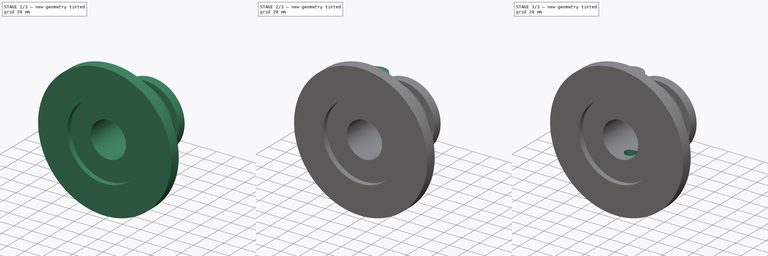
[diagram: build sequence overview — one tinted view per stage of 3, left to right]
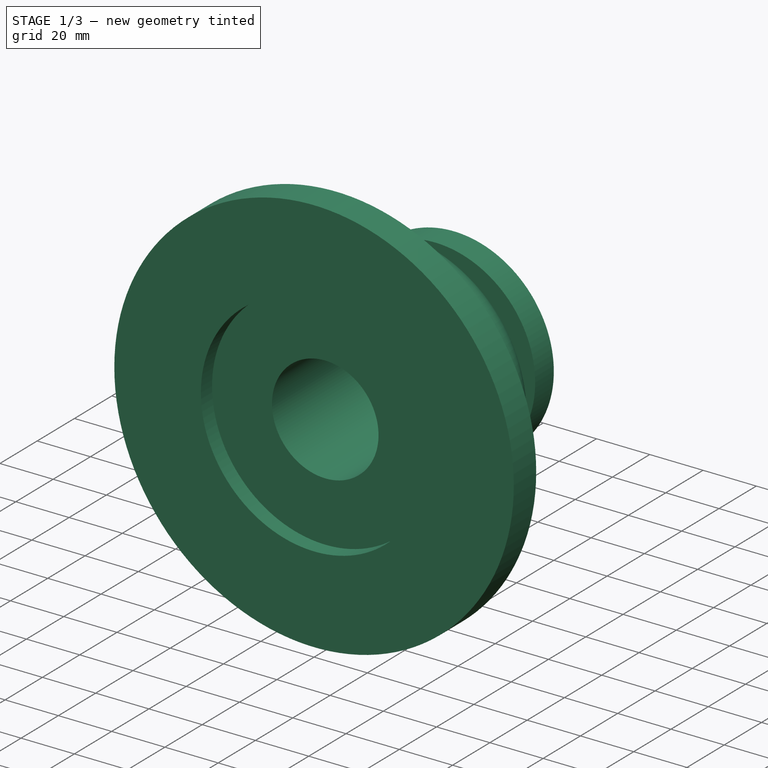
[diagram: stage 1 of 3 — iso view after this stage's code; geometry added in this stage tinted green]
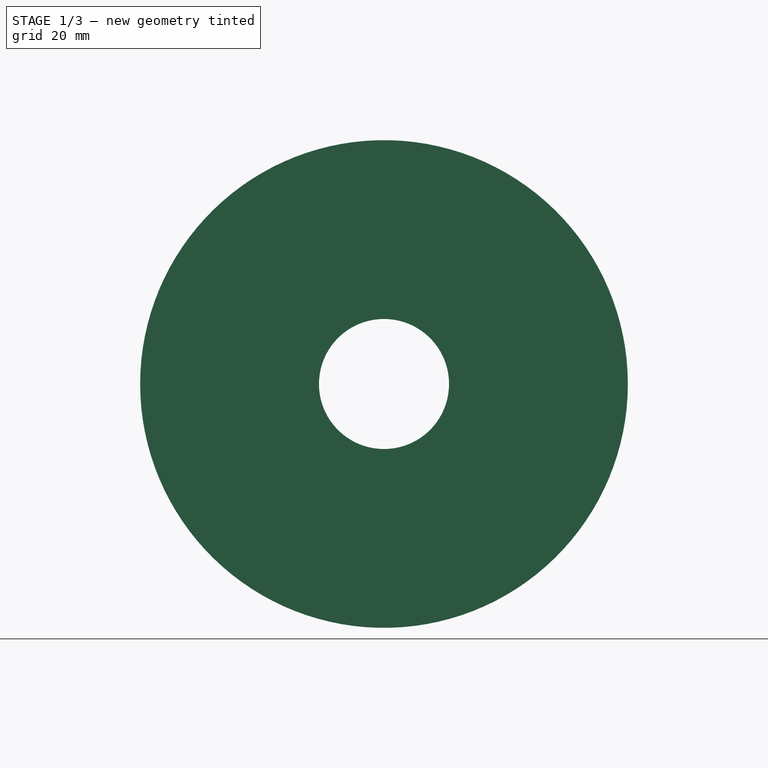
[diagram: stage 1 of 3 — front view after this stage's code; geometry added in this stage tinted green]
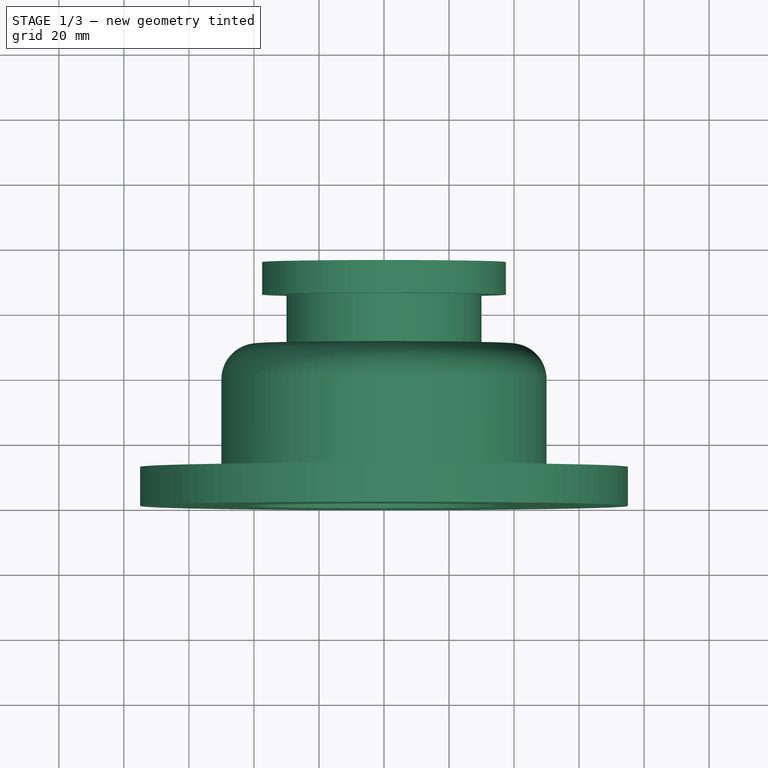
[diagram: stage 1 of 3 — top view after this stage's code; geometry added in this stage tinted green]
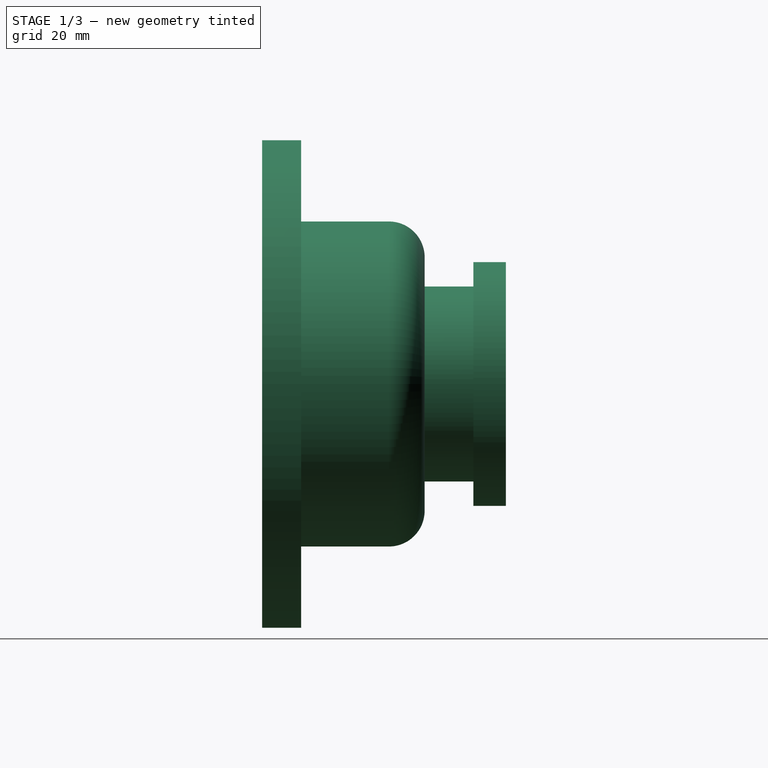
[diagram: stage 1 of 3 — right view after this stage's code; geometry added in this stage tinted green]
FCSTD DOCUMENT  (FreeCAD 1.1R41905 (Git))
Label: 23-T-17-Port
License: Creative Commons Attribution-NonCommercial-ShareAlike 4.0
LicenseURL: https://creativecommons.org/licenses/by-nc-sa/4.0/
objects: Sketcher::SketchObject×2, PartDesign::Hole×2, App::Point×1, PartDesign::Revolution×1, PartDesign::Pad×1, PartDesign::Mirrored×1, PartDesign::Body×1
note: 19 computed .brp shape members not serialized (recipe doc carries the construction recipe); baked Part::Feature solids carry a one-line shape summary decoded from their .brp

FEATURE [App::Point] Origin001  label="Origine"
  Role = Origin
FEATURE [Sketcher::SketchObject] Sketch
  ArcFitTolerance = 1e-06
  AttachmentSupport = -> [Origin]
  ExternalTypes = [0]
  FullyConstrained = true
  MakeInternals = false
  MapMode = 5
  expr: Constraints[24] = 150 / 2
  expr: Constraints[27] = 60 / 2
  expr: Constraints[30] = 75 / 2
  sketch-geometry (11):
    g0: LineSegment StartX=0 StartY=0 StartZ=0 EndX=-75 EndY=0 EndZ=0
    g1: LineSegment StartX=-75 StartY=0 StartZ=0 EndX=-75 EndY=12 EndZ=0
    g2: LineSegment StartX=-75 StartY=12 StartZ=0 EndX=-50 EndY=12 EndZ=0
    g3: LineSegment StartX=-50 StartY=12 StartZ=0 EndX=-50 EndY=39 EndZ=0
    g4: ArcOfCircle CenterX=-39 CenterY=39 CenterZ=0 NormalX=0 NormalY=0 NormalZ=1 AngleXU=0 Radius=11 StartAngle=1.5708 EndAngle=3.14159
    g5: LineSegment StartX=-39 StartY=50 StartZ=0 EndX=-30 EndY=50 EndZ=0
    g6: LineSegment StartX=-30 StartY=50 StartZ=0 EndX=-30 EndY=65 EndZ=0
    g7: LineSegment StartX=-30 StartY=65 StartZ=0 EndX=-37.5 EndY=65 EndZ=0
    g8: LineSegment StartX=-37.5 StartY=65 StartZ=0 EndX=-37.5 EndY=75 EndZ=0
    g9: LineSegment StartX=-37.5 StartY=75 StartZ=0 EndX=0 EndY=75 EndZ=0
    g10: LineSegment StartX=0 StartY=75 StartZ=0 EndX=0 EndY=0 EndZ=0
  constraints (31):
    c: Coincident(g-1,g0)
    c: PointOnObject(g0,g-1)
    c: Coincident(g0,g1)
    c: Coincident(g1,g2)
    c: Horizontal(g2)
    c: Coincident(g2,g3)
    c: Vertical(g3)
    c: Tangent(g3,g4) = 1.5708
    c: Horizontal(g5)
    c: Coincident(g5,g6)
    c: Vertical(g6)
    c: Coincident(g6,g7)
    c: Horizontal(g7)
    c: Coincident(g7,g8)
    c: Coincident(g8,g9)
    c: PointOnObject(g9,g-2)
    c: Horizontal(g9)
    c: Coincident(g9,g10)
    c: Coincident(g10,g0)
    c: Vertical(g8)
    c: Vertical(g1)
    c: Tangent(g4,g5) = 1.5708
    c: DistanceY(g8,g8) = 10
    c: Distance(g4,g0) = 50
    c: DistanceX(g0,g0) = 75
    c: Distance(g1,g1) = 12
    c: Radius(g4) = 11
    c: Distance(g6,g10) = 30
    c: DistanceY(g-1,g9) = 75
    c: Distance(g2,g10) = 50
    c: DistanceX(g9,g9) = 37.5
FEATURE [PartDesign::Revolution] Revolution
  Angle = 360
  Angle2 = 60
  Axis = (1e-16,1,-1e-16)
  Base = (0,0,0)
  Profile = -> Sketch
  ReferenceAxis = -> Y_Axis
  Refine = true
  Suppressed = false
  Type = 0
FEATURE [PartDesign::Hole] Hole
  BaseFeature = -> Revolution
  BaseProfileType = 7
  CustomThreadClearance = 0
  Depth = 454.441
  DepthType = 1
  Diameter = 40
  DrillForDepth = false
  DrillPoint = 1
  DrillPointAngle = 118
  HoleCutCountersinkAngle = 90
  HoleCutCustomValues = false
  HoleCutDepth = 6
  HoleCutDiameter = 85
  HoleCutType = 1
  ModelThread = false
  Profile = -> Revolution [Face1]
  Refine = true
  Suppressed = false
  Tapered = false
  TaperedAngle = 90
  ThreadClass = 0
  ThreadDepth = 454.441
  ThreadDepthType = 0
  ThreadDiameter = 40
  ThreadDirection = 0
  ThreadFit = 0
  ThreadSize = 0
  ThreadType = 0
  Threaded = false
  UseCustomThreadClearance = false
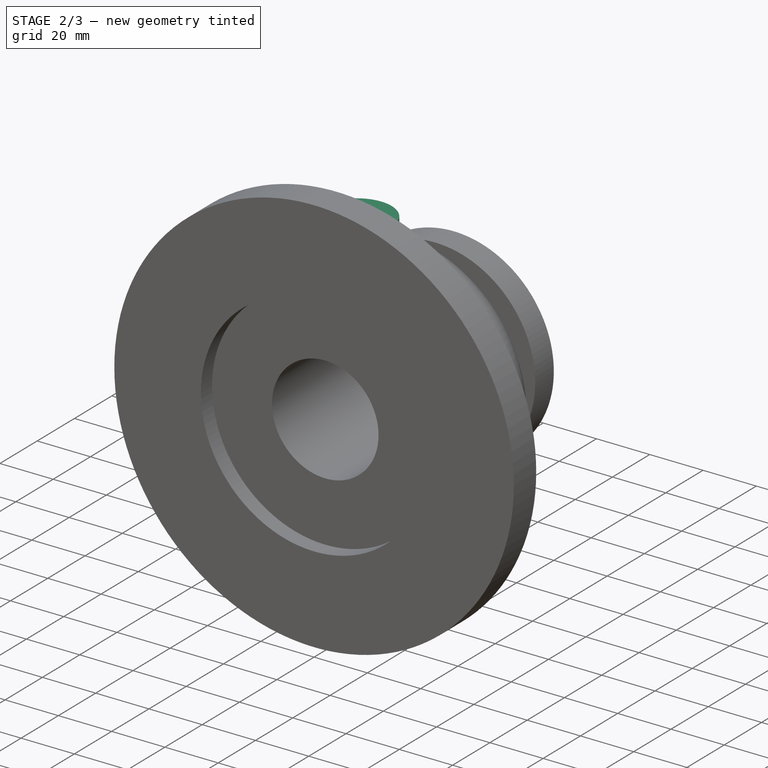
[diagram: stage 2 of 3 — iso view after this stage's code; geometry added in this stage tinted green]
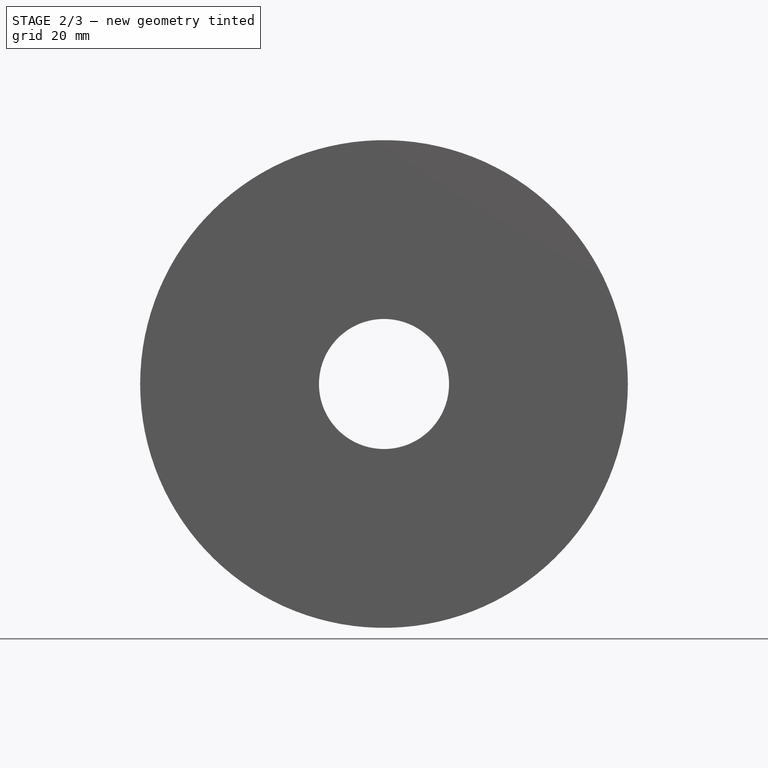
[diagram: stage 2 of 3 — front view after this stage's code; geometry added in this stage tinted green]
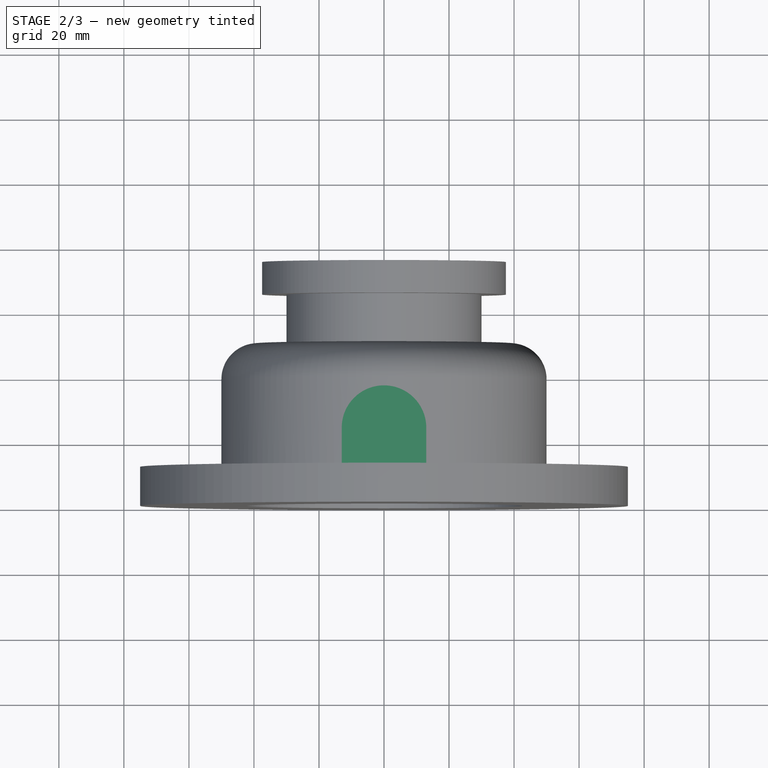
[diagram: stage 2 of 3 — top view after this stage's code; geometry added in this stage tinted green]
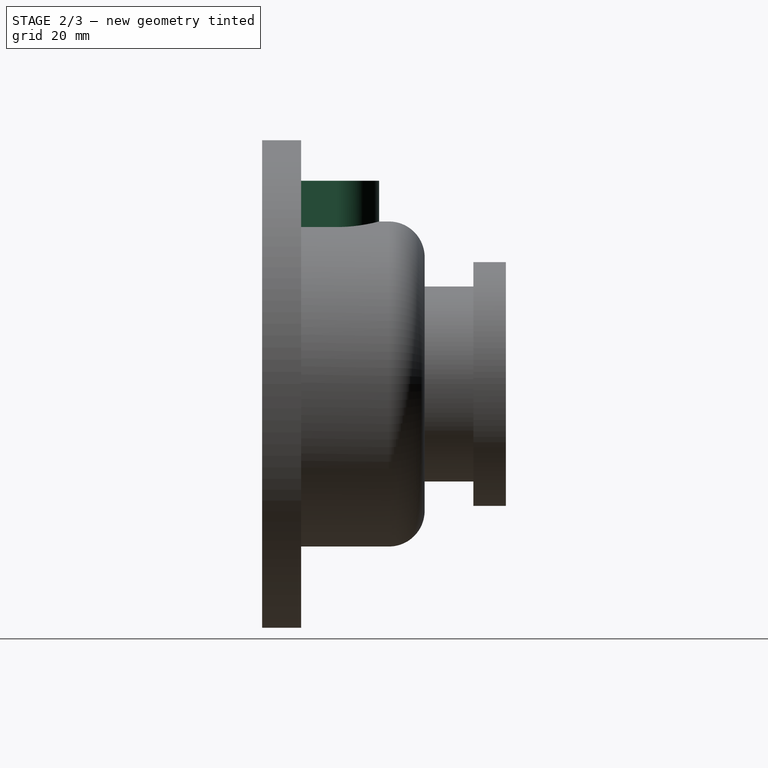
[diagram: stage 2 of 3 — right view after this stage's code; geometry added in this stage tinted green]
FEATURE [Sketcher::SketchObject] Sketch001
  ArcFitTolerance = 1e-06
  AttachmentOffset = pos=(0,0,62.5) rot=(0,0,1;0rad)
  AttachmentSupport = -> [Origin]
  ExternalGeometry = -> [Hole]
  ExternalTypes = [0]
  FullyConstrained = true
  MakeInternals = false
  MapMode = 5
  Placement = pos=(0,0,62.5) rot=(0,0,1;0rad)
  expr: .AttachmentOffset.Base.z = 125 / 2
  sketch-geometry (4):
    g0: LineSegment StartX=-13 StartY=12 StartZ=0 EndX=-13 EndY=23 EndZ=0
    g1: ArcOfCircle CenterX=0 CenterY=23 CenterZ=0 NormalX=0 NormalY=0 NormalZ=1 AngleXU=0 Radius=13 StartAngle=1e-16 EndAngle=3.14159
    g2: LineSegment StartX=13 StartY=23 StartZ=0 EndX=13 EndY=12 EndZ=0
    g3: LineSegment StartX=13 StartY=12 StartZ=0 EndX=-13 EndY=12 EndZ=0
  constraints (11):
    c: PointOnObject(g0,g-3)
    c: Tangent(g0,g1) = 1.5708
    c: Tangent(g1,g2) = 1.5708
    c: Coincident(g2,g3)
    c: Coincident(g3,g0)
    c: Horizontal(g3)
    c: Vertical(g2)
    c: Vertical(g0)
    c: Radius(g1) = 13
    c: PointOnObject(g1,g-2)
    c: Distance(g1,g-1) = 23
FEATURE [PartDesign::Pad] Pad
  BaseFeature = -> Hole
  Direction = (0,0,1)
  Length = 62.5
  Length2 = 10
  Profile = -> Sketch001
  ReferenceAxis = -> Sketch001 [N_Axis]
  Refine = true
  Reversed = true
  Suppressed = false
  Type = 2
  expr: Length = 125 / 2
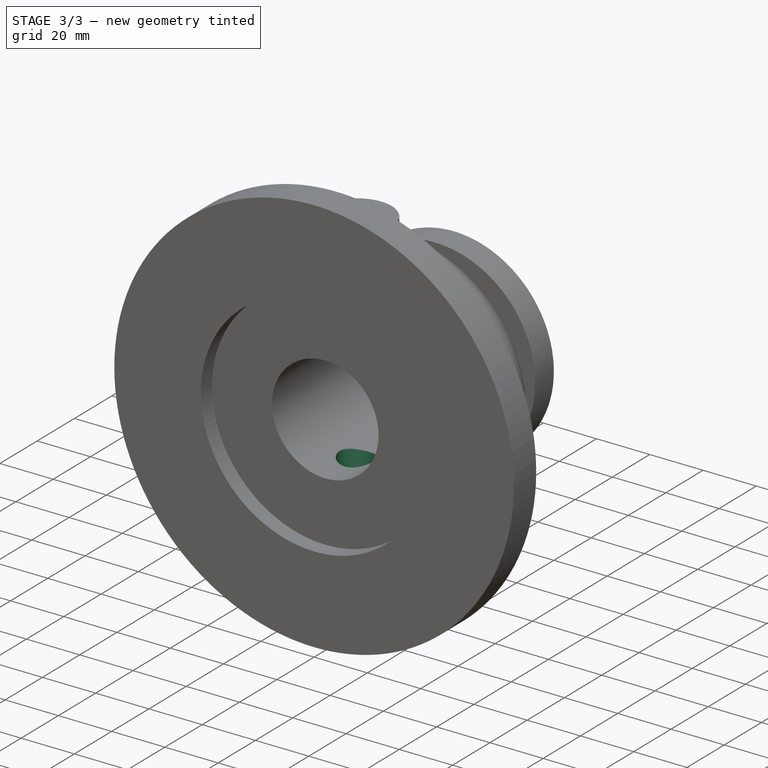
[diagram: stage 3 of 3 — iso view after this stage's code; geometry added in this stage tinted green]
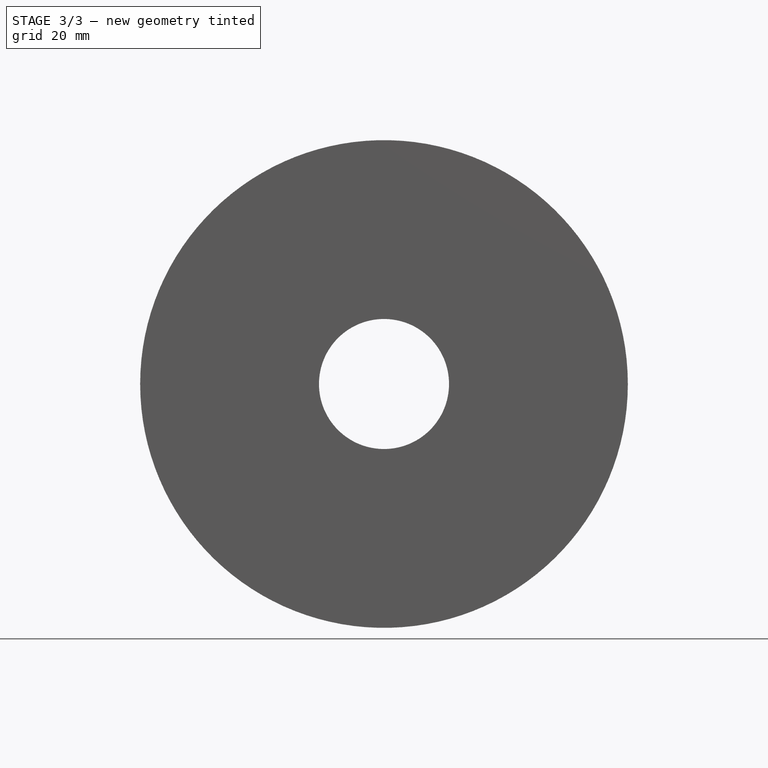
[diagram: stage 3 of 3 — front view after this stage's code; geometry added in this stage tinted green]
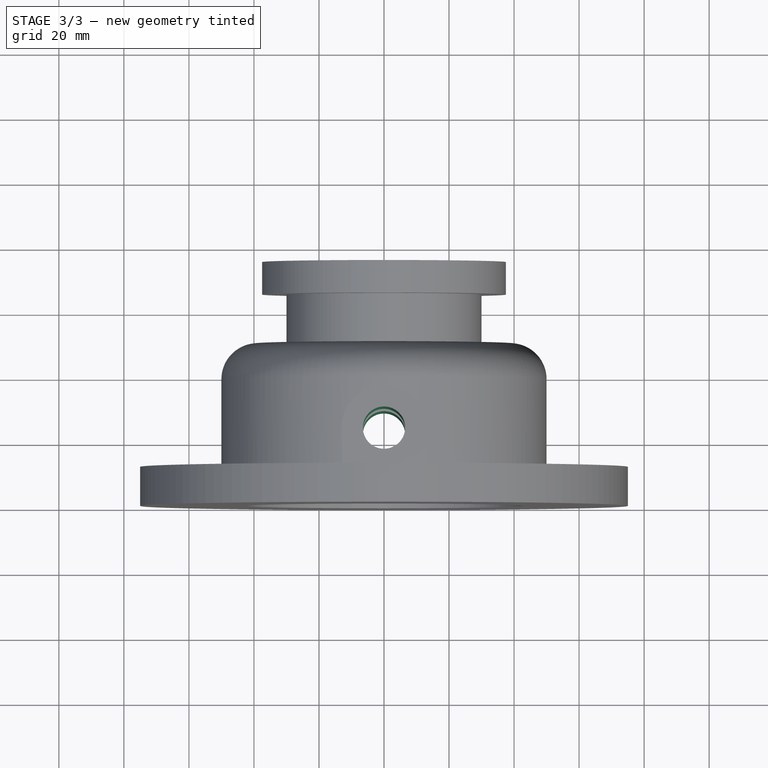
[diagram: stage 3 of 3 — top view after this stage's code; geometry added in this stage tinted green]
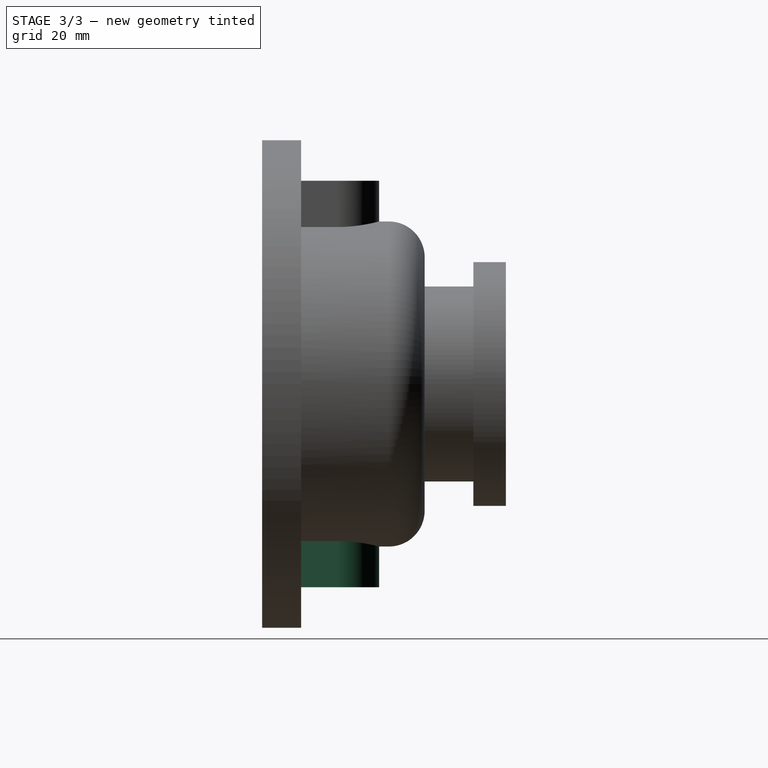
[diagram: stage 3 of 3 — right view after this stage's code; geometry added in this stage tinted green]
FEATURE [PartDesign::Mirrored] Mirrored
  BaseFeature = -> Pad
  MirrorPlane = -> XY_Plane
  Originals = -> [Pad]
  Refine = true
  Suppressed = false
  TransformMode = 0
FEATURE [PartDesign::Hole] Hole001
  BaseFeature = -> Mirrored
  BaseProfileType = 7
  CustomThreadClearance = 0
  Depth = 454.441
  DepthType = 1
  Diameter = 13
  DrillForDepth = false
  DrillPoint = 1
  DrillPointAngle = 118
  HoleCutCountersinkAngle = 90
  HoleCutCustomValues = false
  HoleCutDepth = 0
  HoleCutDiameter = 0
  HoleCutType = 0
  ModelThread = false
  Profile = -> Mirrored [Face11]
  Refine = true
  Suppressed = false
  Tapered = false
  TaperedAngle = 90
  ThreadClass = 0
  ThreadDepth = 454.441
  ThreadDepthType = 0
  ThreadDiameter = 13
  ThreadDirection = 0
  ThreadFit = 0
  ThreadSize = 0
  ThreadType = 0
  Threaded = false
  UseCustomThreadClearance = false
FEATURE [PartDesign::Body] Body  label="Corps"
  AllowCompound = false
  Group = -> [Sketch,Revolution,Hole,Sketch001,Pad,Mirrored,Hole001]
  Origin = -> Origin
  Tip = -> Hole001
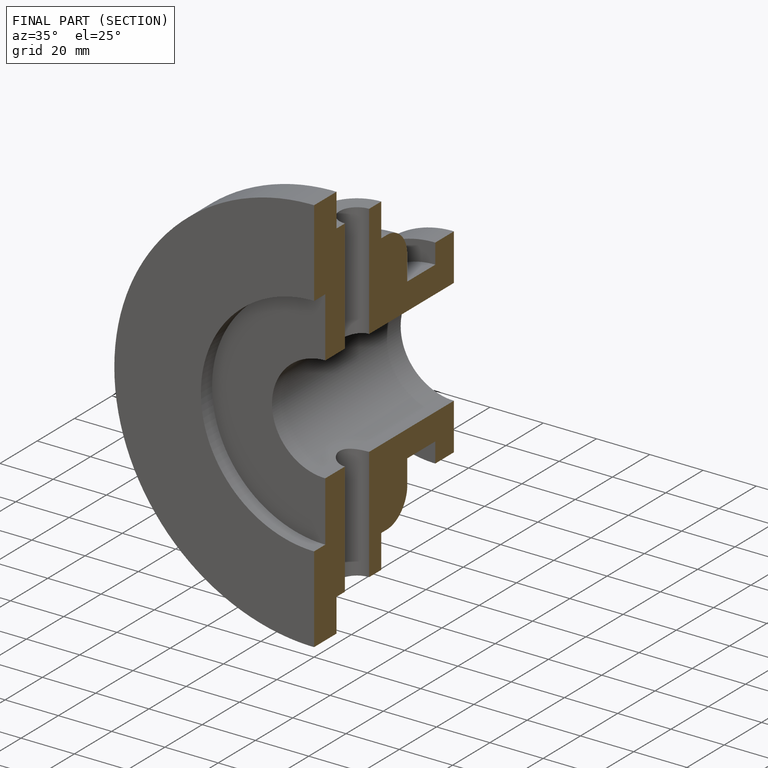
[diagram: finished part — half-section view (interior)]
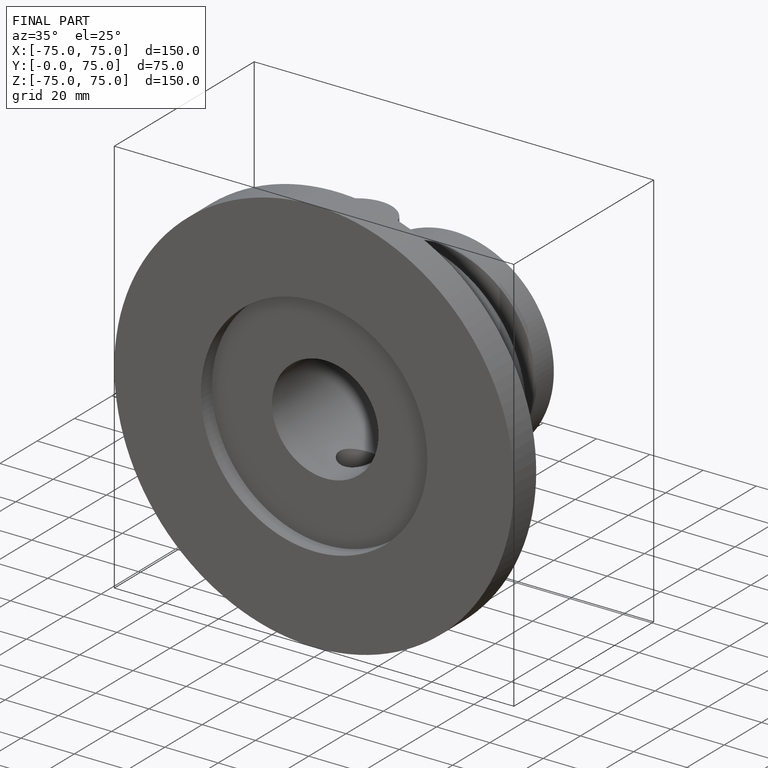
[diagram: finished part — iso view with bounding-box wireframe]
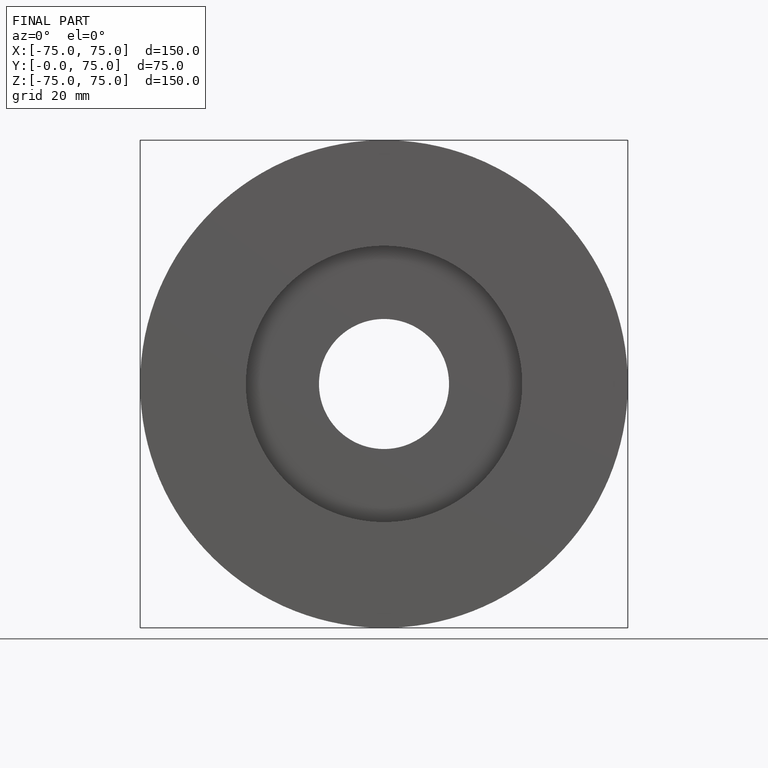
[diagram: finished part — front view with bounding-box wireframe]
